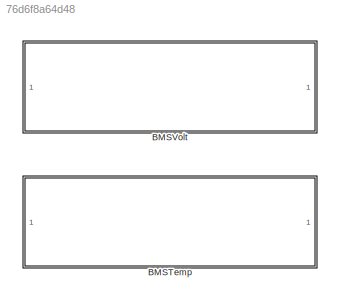
MODEL slx_76d6f8a64d48
KIND library
CONFIG AbsTol = auto
CONFIG EnableMultiTasking = off
CONFIG FixedStep = auto
CONFIG MaxStep = auto
CONFIG MinStep = auto
CONFIG RelTol = 1e-3
CONFIG SampleTimeConstraint = Unconstrained
CONFIG SolverName = VariableStepAuto
CONFIG StartTime = 0.0
CONFIG StopTime = 10.0
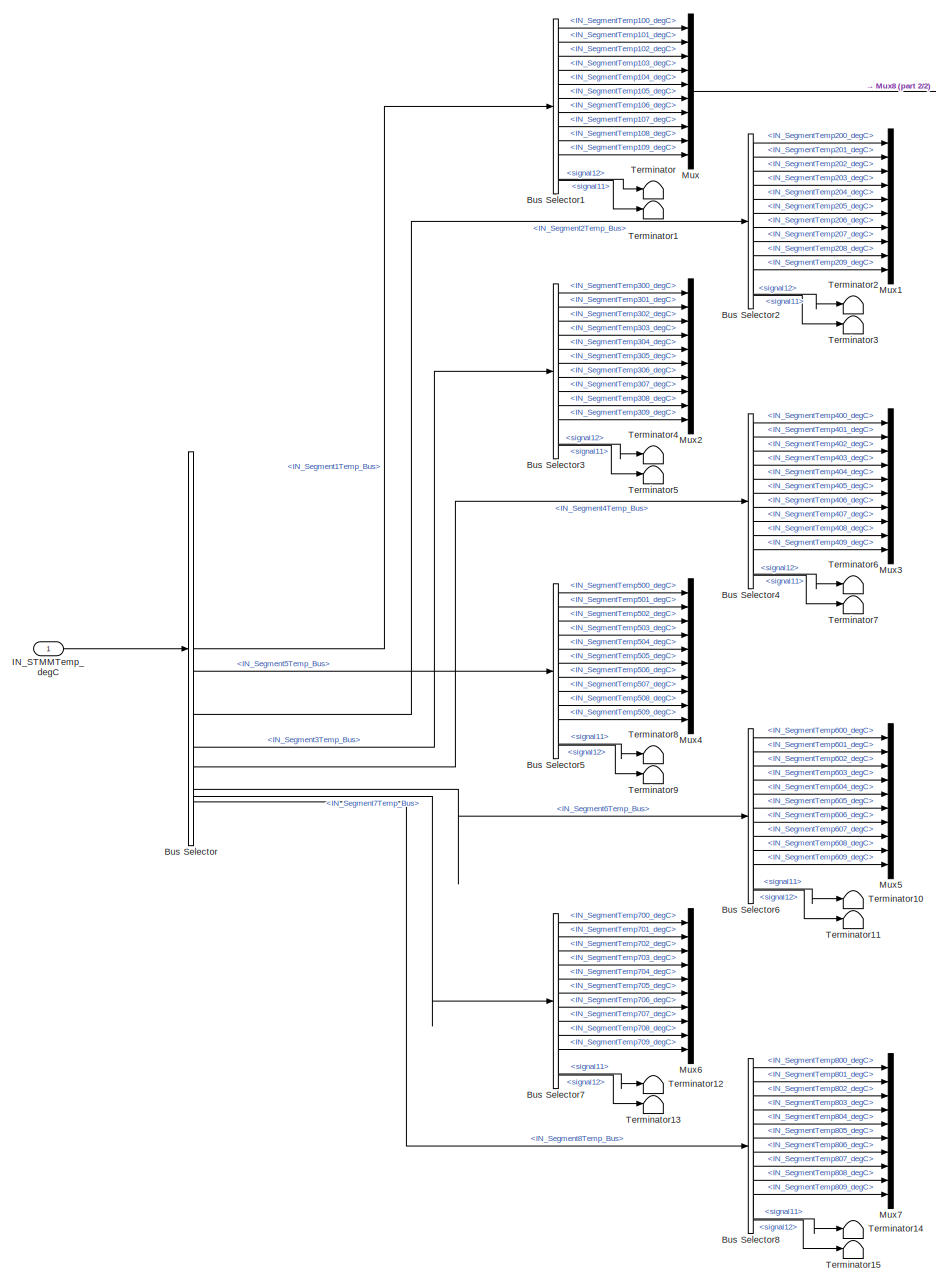
[diagram: BMSTemp - part 1/2, left side, full height]
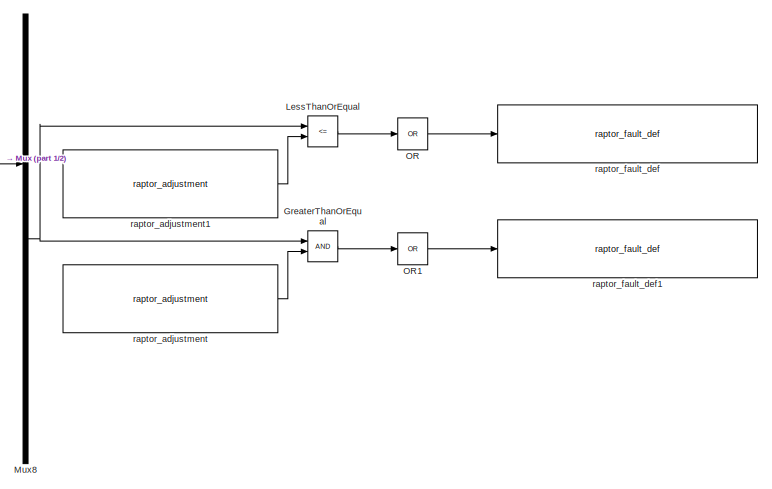
[diagram: BMSTemp - part 2/2, middle right region]
BLOCK [SubSystem] BMSTemp
BLOCK [BusSelector] BMSTemp/Bus Selector
  OutputSignals = IN_Segment1Temp_Bus,IN_Segment2Temp_Bus,IN_Segment3Temp_Bus,IN_Segment4Temp_Bus,IN_Segment5Temp_Bus,IN_Segment6Temp_Bus,IN_Segment7Temp_Bus,IN_Segment8Temp_Bus
BLOCK [BusSelector] BMSTemp/Bus Selector1
  OutputSignals = IN_SegmentTemp100_degC,IN_SegmentTemp101_degC,IN_SegmentTemp102_degC,IN_SegmentTemp103_degC,IN_SegmentTemp104_degC,IN_SegmentTemp105_degC,IN_SegmentTemp106_degC,IN_SegmentTemp107_degC,IN_SegmentTemp108_degC,IN_SegmentTemp109_degC,signal11,signal12
BLOCK [BusSelector] BMSTemp/Bus Selector2
  OutputSignals = IN_SegmentTemp200_degC,IN_SegmentTemp201_degC,IN_SegmentTemp202_degC,IN_SegmentTemp203_degC,IN_SegmentTemp204_degC,IN_SegmentTemp205_degC,IN_SegmentTemp206_degC,IN_SegmentTemp207_degC,IN_SegmentTemp208_degC,IN_SegmentTemp209_degC,signal11,signal12
BLOCK [BusSelector] BMSTemp/Bus Selector3
  OutputSignals = IN_SegmentTemp300_degC,IN_SegmentTemp301_degC,IN_SegmentTemp302_degC,IN_SegmentTemp303_degC,IN_SegmentTemp304_degC,IN_SegmentTemp305_degC,IN_SegmentTemp306_degC,IN_SegmentTemp307_degC,IN_SegmentTemp308_degC,IN_SegmentTemp309_degC,signal11,signal12
BLOCK [BusSelector] BMSTemp/Bus Selector4
  OutputSignals = IN_SegmentTemp400_degC,IN_SegmentTemp401_degC,IN_SegmentTemp402_degC,IN_SegmentTemp403_degC,IN_SegmentTemp404_degC,IN_SegmentTemp405_degC,IN_SegmentTemp406_degC,IN_SegmentTemp407_degC,IN_SegmentTemp408_degC,IN_SegmentTemp409_degC,signal11,signal12
BLOCK [BusSelector] BMSTemp/Bus Selector5
  OutputSignals = IN_SegmentTemp500_degC,IN_SegmentTemp501_degC,IN_SegmentTemp502_degC,IN_SegmentTemp503_degC,IN_SegmentTemp504_degC,IN_SegmentTemp505_degC,IN_SegmentTemp506_degC,IN_SegmentTemp507_degC,IN_SegmentTemp508_degC,IN_SegmentTemp509_degC,signal11,signal12
BLOCK [BusSelector] BMSTemp/Bus Selector6
  OutputSignals = IN_SegmentTemp600_degC,IN_SegmentTemp601_degC,IN_SegmentTemp602_degC,IN_SegmentTemp603_degC,IN_SegmentTemp604_degC,IN_SegmentTemp605_degC,IN_SegmentTemp606_degC,IN_SegmentTemp607_degC,IN_SegmentTemp608_degC,IN_SegmentTemp609_degC,signal11,signal12
BLOCK [BusSelector] BMSTemp/Bus Selector7
  OutputSignals = IN_SegmentTemp700_degC,IN_SegmentTemp701_degC,IN_SegmentTemp702_degC,IN_SegmentTemp703_degC,IN_SegmentTemp704_degC,IN_SegmentTemp705_degC,IN_SegmentTemp706_degC,IN_SegmentTemp707_degC,IN_SegmentTemp708_degC,IN_SegmentTemp709_degC,signal11,signal12
BLOCK [BusSelector] BMSTemp/Bus Selector8
  OutputSignals = IN_SegmentTemp800_degC,IN_SegmentTemp801_degC,IN_SegmentTemp802_degC,IN_SegmentTemp803_degC,IN_SegmentTemp804_degC,IN_SegmentTemp805_degC,IN_SegmentTemp806_degC,IN_SegmentTemp807_degC,IN_SegmentTemp808_degC,IN_SegmentTemp809_degC,signal11,signal12
BLOCK [RelationalOperator] BMSTemp/GreaterThanOrEqual
  InputSameDT = off
  OutDataTypeStr = boolean
  RndMeth = Simplest
BLOCK [Inport] BMSTemp/IN_STMMTemp_degC
BLOCK [RelationalOperator] BMSTemp/LessThanOrEqual
  InputSameDT = off
  Operator = <=
  OutDataTypeStr = boolean
  RndMeth = Simplest
BLOCK [Mux] BMSTemp/Mux
  DisplayOption = bar
  Inputs = 10
BLOCK [Mux] BMSTemp/Mux1
  DisplayOption = bar
  Inputs = 10
BLOCK [Mux] BMSTemp/Mux2
  DisplayOption = bar
  Inputs = 10
BLOCK [Mux] BMSTemp/Mux3
  DisplayOption = bar
  Inputs = 10
BLOCK [Mux] BMSTemp/Mux4
  DisplayOption = bar
  Inputs = 10
BLOCK [Mux] BMSTemp/Mux5
  DisplayOption = bar
  Inputs = 10
BLOCK [Mux] BMSTemp/Mux6
  DisplayOption = bar
  Inputs = 10
BLOCK [Mux] BMSTemp/Mux7
  DisplayOption = bar
  Inputs = 10
BLOCK [Mux] BMSTemp/Mux8
  DisplayOption = bar
  Inputs = 1
BLOCK [Logic] BMSTemp/OR
  AllPortsSameDT = off
  Inputs = 1
  Operator = OR
  OutDataTypeStr = boolean
BLOCK [Logic] BMSTemp/OR1
  AllPortsSameDT = off
  Inputs = 1
  Operator = OR
  OutDataTypeStr = boolean
BLOCK [Terminator] BMSTemp/Terminator
BLOCK [Terminator] BMSTemp/Terminator1
BLOCK [Terminator] BMSTemp/Terminator10
BLOCK [Terminator] BMSTemp/Terminator11
BLOCK [Terminator] BMSTemp/Terminator12
BLOCK [Terminator] BMSTemp/Terminator13
BLOCK [Terminator] BMSTemp/Terminator14
BLOCK [Terminator] BMSTemp/Terminator15
BLOCK [Terminator] BMSTemp/Terminator2
BLOCK [Terminator] BMSTemp/Terminator3
BLOCK [Terminator] BMSTemp/Terminator4
BLOCK [Terminator] BMSTemp/Terminator5
BLOCK [Terminator] BMSTemp/Terminator6
BLOCK [Terminator] BMSTemp/Terminator7
BLOCK [Terminator] BMSTemp/Terminator8
BLOCK [Terminator] BMSTemp/Terminator9
BLOCK [Reference] BMSTemp/raptor_adjustment  REF=Raptor_lib/Data Storage/raptor_adjustment
  SourceBlock = Raptor_lib/Data Storage/raptor_adjustment
  SourceProductName = Raptor
  SourceType = Adjustment
BLOCK [Reference] BMSTemp/raptor_adjustment1  REF=Raptor_lib/Data Storage/raptor_adjustment
  SourceBlock = Raptor_lib/Data Storage/raptor_adjustment
  SourceProductName = Raptor
  SourceType = Adjustment
BLOCK [Reference] BMSTemp/raptor_fault_def  REF=Raptor_lib/Faults/raptor_fault_def
  SourceBlock = Raptor_lib/Faults/raptor_fault_def
  SourceProductName = Raptor
  SourceType = Fault Definition
BLOCK [Reference] BMSTemp/raptor_fault_def1  REF=Raptor_lib/Faults/raptor_fault_def
  SourceBlock = Raptor_lib/Faults/raptor_fault_def
  SourceProductName = Raptor
  SourceType = Fault Definition
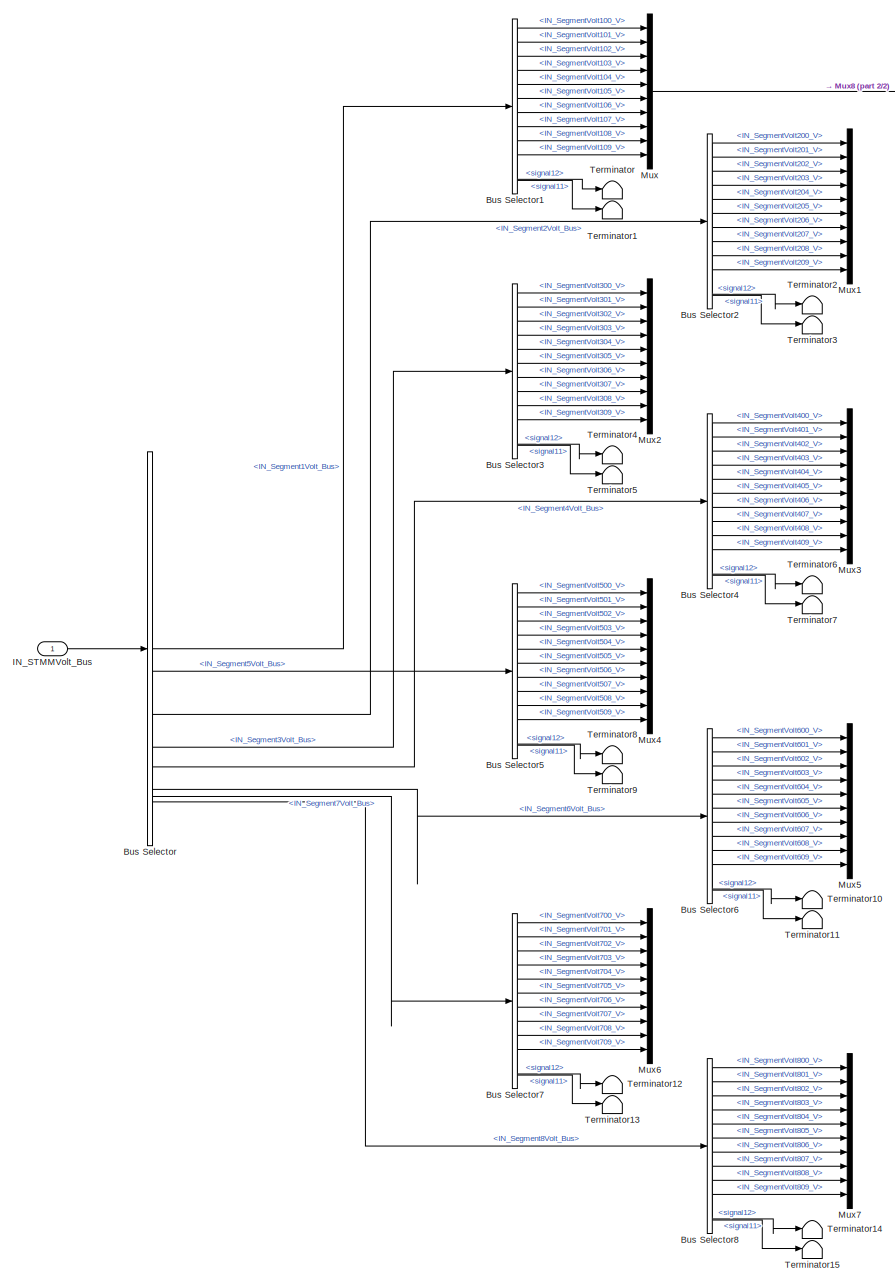
[diagram: BMSVolt - part 1/2, left side, full height]
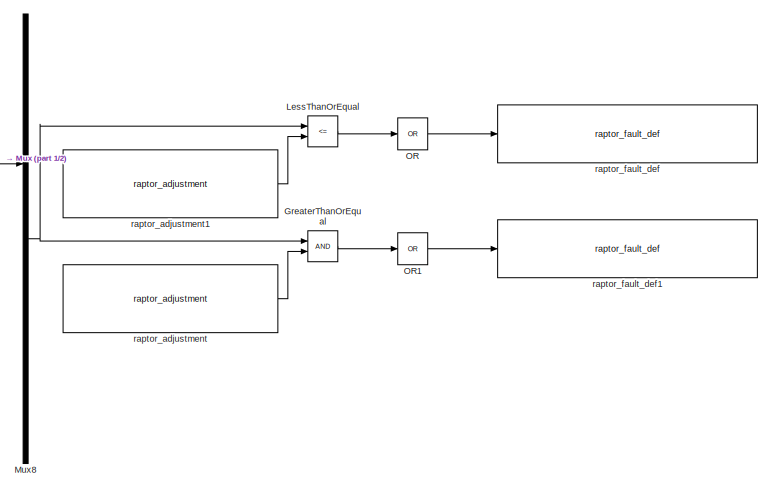
[diagram: BMSVolt - part 2/2, middle right region]
BLOCK [SubSystem] BMSVolt
BLOCK [BusSelector] BMSVolt/Bus Selector
  OutputSignals = IN_Segment1Volt_Bus,IN_Segment2Volt_Bus,IN_Segment3Volt_Bus,IN_Segment4Volt_Bus,IN_Segment5Volt_Bus,IN_Segment6Volt_Bus,IN_Segment7Volt_Bus,IN_Segment8Volt_Bus
BLOCK [BusSelector] BMSVolt/Bus Selector1
  OutputSignals = IN_SegmentVolt100_V,IN_SegmentVolt101_V,IN_SegmentVolt102_V,IN_SegmentVolt103_V,IN_SegmentVolt104_V,IN_SegmentVolt105_V,IN_SegmentVolt106_V,IN_SegmentVolt107_V,IN_SegmentVolt108_V,IN_SegmentVolt109_V,signal11,signal12
BLOCK [BusSelector] BMSVolt/Bus Selector2
  OutputSignals = IN_SegmentVolt200_V,IN_SegmentVolt201_V,IN_SegmentVolt202_V,IN_SegmentVolt203_V,IN_SegmentVolt204_V,IN_SegmentVolt205_V,IN_SegmentVolt206_V,IN_SegmentVolt207_V,IN_SegmentVolt208_V,IN_SegmentVolt209_V,signal11,signal12
BLOCK [BusSelector] BMSVolt/Bus Selector3
  OutputSignals = IN_SegmentVolt300_V,IN_SegmentVolt301_V,IN_SegmentVolt302_V,IN_SegmentVolt303_V,IN_SegmentVolt304_V,IN_SegmentVolt305_V,IN_SegmentVolt306_V,IN_SegmentVolt307_V,IN_SegmentVolt308_V,IN_SegmentVolt309_V,signal11,signal12
BLOCK [BusSelector] BMSVolt/Bus Selector4
  OutputSignals = IN_SegmentVolt400_V,IN_SegmentVolt401_V,IN_SegmentVolt402_V,IN_SegmentVolt403_V,IN_SegmentVolt404_V,IN_SegmentVolt405_V,IN_SegmentVolt406_V,IN_SegmentVolt407_V,IN_SegmentVolt408_V,IN_SegmentVolt409_V,signal11,signal12
BLOCK [BusSelector] BMSVolt/Bus Selector5
  OutputSignals = IN_SegmentVolt500_V,IN_SegmentVolt501_V,IN_SegmentVolt502_V,IN_SegmentVolt503_V,IN_SegmentVolt504_V,IN_SegmentVolt505_V,IN_SegmentVolt506_V,IN_SegmentVolt507_V,IN_SegmentVolt508_V,IN_SegmentVolt509_V,signal11,signal12
BLOCK [BusSelector] BMSVolt/Bus Selector6
  OutputSignals = IN_SegmentVolt600_V,IN_SegmentVolt601_V,IN_SegmentVolt602_V,IN_SegmentVolt603_V,IN_SegmentVolt604_V,IN_SegmentVolt605_V,IN_SegmentVolt606_V,IN_SegmentVolt607_V,IN_SegmentVolt608_V,IN_SegmentVolt609_V,signal11,signal12
BLOCK [BusSelector] BMSVolt/Bus Selector7
  OutputSignals = IN_SegmentVolt700_V,IN_SegmentVolt701_V,IN_SegmentVolt702_V,IN_SegmentVolt703_V,IN_SegmentVolt704_V,IN_SegmentVolt705_V,IN_SegmentVolt706_V,IN_SegmentVolt707_V,IN_SegmentVolt708_V,IN_SegmentVolt709_V,signal11,signal12
BLOCK [BusSelector] BMSVolt/Bus Selector8
  OutputSignals = IN_SegmentVolt800_V,IN_SegmentVolt801_V,IN_SegmentVolt802_V,IN_SegmentVolt803_V,IN_SegmentVolt804_V,IN_SegmentVolt805_V,IN_SegmentVolt806_V,IN_SegmentVolt807_V,IN_SegmentVolt808_V,IN_SegmentVolt809_V,signal11,signal12
BLOCK [RelationalOperator] BMSVolt/GreaterThanOrEqual
  InputSameDT = off
  OutDataTypeStr = boolean
  RndMeth = Simplest
BLOCK [Inport] BMSVolt/IN_STMMVolt_Bus
BLOCK [RelationalOperator] BMSVolt/LessThanOrEqual
  InputSameDT = off
  Operator = <=
  OutDataTypeStr = boolean
  RndMeth = Simplest
BLOCK [Mux] BMSVolt/Mux
  DisplayOption = bar
  Inputs = 10
BLOCK [Mux] BMSVolt/Mux1
  DisplayOption = bar
  Inputs = 10
BLOCK [Mux] BMSVolt/Mux2
  DisplayOption = bar
  Inputs = 10
BLOCK [Mux] BMSVolt/Mux3
  DisplayOption = bar
  Inputs = 10
BLOCK [Mux] BMSVolt/Mux4
  DisplayOption = bar
  Inputs = 10
BLOCK [Mux] BMSVolt/Mux5
  DisplayOption = bar
  Inputs = 10
BLOCK [Mux] BMSVolt/Mux6
  DisplayOption = bar
  Inputs = 10
BLOCK [Mux] BMSVolt/Mux7
  DisplayOption = bar
  Inputs = 10
BLOCK [Mux] BMSVolt/Mux8
  DisplayOption = bar
  Inputs = 1
BLOCK [Logic] BMSVolt/OR
  AllPortsSameDT = off
  Inputs = 1
  Operator = OR
  OutDataTypeStr = boolean
BLOCK [Logic] BMSVolt/OR1
  AllPortsSameDT = off
  Inputs = 1
  Operator = OR
  OutDataTypeStr = boolean
BLOCK [Terminator] BMSVolt/Terminator
BLOCK [Terminator] BMSVolt/Terminator1
BLOCK [Terminator] BMSVolt/Terminator10
BLOCK [Terminator] BMSVolt/Terminator11
BLOCK [Terminator] BMSVolt/Terminator12
BLOCK [Terminator] BMSVolt/Terminator13
BLOCK [Terminator] BMSVolt/Terminator14
BLOCK [Terminator] BMSVolt/Terminator15
BLOCK [Terminator] BMSVolt/Terminator2
BLOCK [Terminator] BMSVolt/Terminator3
BLOCK [Terminator] BMSVolt/Terminator4
BLOCK [Terminator] BMSVolt/Terminator5
BLOCK [Terminator] BMSVolt/Terminator6
BLOCK [Terminator] BMSVolt/Terminator7
BLOCK [Terminator] BMSVolt/Terminator8
BLOCK [Terminator] BMSVolt/Terminator9
BLOCK [Reference] BMSVolt/raptor_adjustment  REF=Raptor_lib/Data Storage/raptor_adjustment
  SourceBlock = Raptor_lib/Data Storage/raptor_adjustment
  SourceProductName = Raptor
  SourceType = Adjustment
BLOCK [Reference] BMSVolt/raptor_adjustment1  REF=Raptor_lib/Data Storage/raptor_adjustment
  SourceBlock = Raptor_lib/Data Storage/raptor_adjustment
  SourceProductName = Raptor
  SourceType = Adjustment
BLOCK [Reference] BMSVolt/raptor_fault_def  REF=Raptor_lib/Faults/raptor_fault_def
  SourceBlock = Raptor_lib/Faults/raptor_fault_def
  SourceProductName = Raptor
  SourceType = Fault Definition
BLOCK [Reference] BMSVolt/raptor_fault_def1  REF=Raptor_lib/Faults/raptor_fault_def
  SourceBlock = Raptor_lib/Faults/raptor_fault_def
  SourceProductName = Raptor
  SourceType = Fault Definition
LINE BMSTemp/Bus Selector1:1 -> BMSTemp/Mux:1
LINE BMSTemp/Bus Selector1:10 -> BMSTemp/Mux:10
LINE BMSTemp/Bus Selector1:11 -> BMSTemp/Terminator:1
LINE BMSTemp/Bus Selector1:12 -> BMSTemp/Terminator1:1
LINE BMSTemp/Bus Selector1:2 -> BMSTemp/Mux:2
LINE BMSTemp/Bus Selector1:3 -> BMSTemp/Mux:3
LINE BMSTemp/Bus Selector1:4 -> BMSTemp/Mux:4
LINE BMSTemp/Bus Selector1:5 -> BMSTemp/Mux:5
LINE BMSTemp/Bus Selector1:6 -> BMSTemp/Mux:6
LINE BMSTemp/Bus Selector1:7 -> BMSTemp/Mux:7
LINE BMSTemp/Bus Selector1:8 -> BMSTemp/Mux:8
LINE BMSTemp/Bus Selector1:9 -> BMSTemp/Mux:9
LINE BMSTemp/Bus Selector2:1 -> BMSTemp/Mux1:1
LINE BMSTemp/Bus Selector2:10 -> BMSTemp/Mux1:10
LINE BMSTemp/Bus Selector2:11 -> BMSTemp/Terminator2:1
LINE BMSTemp/Bus Selector2:12 -> BMSTemp/Terminator3:1
LINE BMSTemp/Bus Selector2:2 -> BMSTemp/Mux1:2
LINE BMSTemp/Bus Selector2:3 -> BMSTemp/Mux1:3
LINE BMSTemp/Bus Selector2:4 -> BMSTemp/Mux1:4
LINE BMSTemp/Bus Selector2:5 -> BMSTemp/Mux1:5
LINE BMSTemp/Bus Selector2:6 -> BMSTemp/Mux1:6
LINE BMSTemp/Bus Selector2:7 -> BMSTemp/Mux1:7
LINE BMSTemp/Bus Selector2:8 -> BMSTemp/Mux1:8
LINE BMSTemp/Bus Selector2:9 -> BMSTemp/Mux1:9
LINE BMSTemp/Bus Selector3:1 -> BMSTemp/Mux2:1
LINE BMSTemp/Bus Selector3:10 -> BMSTemp/Mux2:10
LINE BMSTemp/Bus Selector3:11 -> BMSTemp/Terminator4:1
LINE BMSTemp/Bus Selector3:12 -> BMSTemp/Terminator5:1
LINE BMSTemp/Bus Selector3:2 -> BMSTemp/Mux2:2
LINE BMSTemp/Bus Selector3:3 -> BMSTemp/Mux2:3
LINE BMSTemp/Bus Selector3:4 -> BMSTemp/Mux2:4
LINE BMSTemp/Bus Selector3:5 -> BMSTemp/Mux2:5
LINE BMSTemp/Bus Selector3:6 -> BMSTemp/Mux2:6
LINE BMSTemp/Bus Selector3:7 -> BMSTemp/Mux2:7
LINE BMSTemp/Bus Selector3:8 -> BMSTemp/Mux2:8
LINE BMSTemp/Bus Selector3:9 -> BMSTemp/Mux2:9
LINE BMSTemp/Bus Selector4:1 -> BMSTemp/Mux3:1
LINE BMSTemp/Bus Selector4:10 -> BMSTemp/Mux3:10
LINE BMSTemp/Bus Selector4:11 -> BMSTemp/Terminator6:1
LINE BMSTemp/Bus Selector4:12 -> BMSTemp/Terminator7:1
LINE BMSTemp/Bus Selector4:2 -> BMSTemp/Mux3:2
LINE BMSTemp/Bus Selector4:3 -> BMSTemp/Mux3:3
LINE BMSTemp/Bus Selector4:4 -> BMSTemp/Mux3:4
LINE BMSTemp/Bus Selector4:5 -> BMSTemp/Mux3:5
LINE BMSTemp/Bus Selector4:6 -> BMSTemp/Mux3:6
LINE BMSTemp/Bus Selector4:7 -> BMSTemp/Mux3:7
LINE BMSTemp/Bus Selector4:8 -> BMSTemp/Mux3:8
LINE BMSTemp/Bus Selector4:9 -> BMSTemp/Mux3:9
LINE BMSTemp/Bus Selector5:1 -> BMSTemp/Mux4:1
LINE BMSTemp/Bus Selector5:10 -> BMSTemp/Mux4:10
LINE BMSTemp/Bus Selector5:11 -> BMSTemp/Terminator8:1
LINE BMSTemp/Bus Selector5:12 -> BMSTemp/Terminator9:1
LINE BMSTemp/Bus Selector5:2 -> BMSTemp/Mux4:2
LINE BMSTemp/Bus Selector5:3 -> BMSTemp/Mux4:3
LINE BMSTemp/Bus Selector5:4 -> BMSTemp/Mux4:4
LINE BMSTemp/Bus Selector5:5 -> BMSTemp/Mux4:5
LINE BMSTemp/Bus Selector5:6 -> BMSTemp/Mux4:6
LINE BMSTemp/Bus Selector5:7 -> BMSTemp/Mux4:7
LINE BMSTemp/Bus Selector5:8 -> BMSTemp/Mux4:8
LINE BMSTemp/Bus Selector5:9 -> BMSTemp/Mux4:9
LINE BMSTemp/Bus Selector6:1 -> BMSTemp/Mux5:1
LINE BMSTemp/Bus Selector6:10 -> BMSTemp/Mux5:10
LINE BMSTemp/Bus Selector6:11 -> BMSTemp/Terminator10:1
LINE BMSTemp/Bus Selector6:12 -> BMSTemp/Terminator11:1
LINE BMSTemp/Bus Selector6:2 -> BMSTemp/Mux5:2
LINE BMSTemp/Bus Selector6:3 -> BMSTemp/Mux5:3
LINE BMSTemp/Bus Selector6:4 -> BMSTemp/Mux5:4
LINE BMSTemp/Bus Selector6:5 -> BMSTemp/Mux5:5
LINE BMSTemp/Bus Selector6:6 -> BMSTemp/Mux5:6
LINE BMSTemp/Bus Selector6:7 -> BMSTemp/Mux5:7
LINE BMSTemp/Bus Selector6:8 -> BMSTemp/Mux5:8
LINE BMSTemp/Bus Selector6:9 -> BMSTemp/Mux5:9
LINE BMSTemp/Bus Selector7:1 -> BMSTemp/Mux6:1
LINE BMSTemp/Bus Selector7:10 -> BMSTemp/Mux6:10
LINE BMSTemp/Bus Selector7:11 -> BMSTemp/Terminator12:1
LINE BMSTemp/Bus Selector7:12 -> BMSTemp/Terminator13:1
LINE BMSTemp/Bus Selector7:2 -> BMSTemp/Mux6:2
LINE BMSTemp/Bus Selector7:3 -> BMSTemp/Mux6:3
LINE BMSTemp/Bus Selector7:4 -> BMSTemp/Mux6:4
LINE BMSTemp/Bus Selector7:5 -> BMSTemp/Mux6:5
LINE BMSTemp/Bus Selector7:6 -> BMSTemp/Mux6:6
LINE BMSTemp/Bus Selector7:7 -> BMSTemp/Mux6:7
LINE BMSTemp/Bus Selector7:8 -> BMSTemp/Mux6:8
LINE BMSTemp/Bus Selector7:9 -> BMSTemp/Mux6:9
LINE BMSTemp/Bus Selector8:1 -> BMSTemp/Mux7:1
LINE BMSTemp/Bus Selector8:10 -> BMSTemp/Mux7:10
LINE BMSTemp/Bus Selector8:11 -> BMSTemp/Terminator14:1
LINE BMSTemp/Bus Selector8:12 -> BMSTemp/Terminator15:1
LINE BMSTemp/Bus Selector8:2 -> BMSTemp/Mux7:2
LINE BMSTemp/Bus Selector8:3 -> BMSTemp/Mux7:3
LINE BMSTemp/Bus Selector8:4 -> BMSTemp/Mux7:4
LINE BMSTemp/Bus Selector8:5 -> BMSTemp/Mux7:5
LINE BMSTemp/Bus Selector8:6 -> BMSTemp/Mux7:6
LINE BMSTemp/Bus Selector8:7 -> BMSTemp/Mux7:7
LINE BMSTemp/Bus Selector8:8 -> BMSTemp/Mux7:8
LINE BMSTemp/Bus Selector8:9 -> BMSTemp/Mux7:9
LINE BMSTemp/Bus Selector:1 -> BMSTemp/Bus Selector1:1
LINE BMSTemp/Bus Selector:2 -> BMSTemp/Bus Selector2:1
LINE BMSTemp/Bus Selector:3 -> BMSTemp/Bus Selector3:1
LINE BMSTemp/Bus Selector:4 -> BMSTemp/Bus Selector4:1
LINE BMSTemp/Bus Selector:5 -> BMSTemp/Bus Selector5:1
LINE BMSTemp/Bus Selector:6 -> BMSTemp/Bus Selector6:1
LINE BMSTemp/Bus Selector:7 -> BMSTemp/Bus Selector7:1
LINE BMSTemp/Bus Selector:8 -> BMSTemp/Bus Selector8:1
LINE BMSTemp/GreaterThanOrEqual:1 -> BMSTemp/OR1:1
LINE BMSTemp/IN_STMMTemp_degC:1 -> BMSTemp/Bus Selector:1
LINE BMSTemp/LessThanOrEqual:1 -> BMSTemp/OR:1
NET BMSTemp/Mux8:1 -> BMSTemp/GreaterThanOrEqual:1, BMSTemp/LessThanOrEqual:1
LINE BMSTemp/Mux:1 -> BMSTemp/Mux8:1
LINE BMSTemp/OR1:1 -> BMSTemp/raptor_fault_def1:1
LINE BMSTemp/OR:1 -> BMSTemp/raptor_fault_def:1
LINE BMSTemp/raptor_adjustment1:1 -> BMSTemp/LessThanOrEqual:2
LINE BMSTemp/raptor_adjustment:1 -> BMSTemp/GreaterThanOrEqual:2
LINE BMSVolt/Bus Selector1:1 -> BMSVolt/Mux:1
LINE BMSVolt/Bus Selector1:10 -> BMSVolt/Mux:10
LINE BMSVolt/Bus Selector1:11 -> BMSVolt/Terminator:1
LINE BMSVolt/Bus Selector1:12 -> BMSVolt/Terminator1:1
LINE BMSVolt/Bus Selector1:2 -> BMSVolt/Mux:2
LINE BMSVolt/Bus Selector1:3 -> BMSVolt/Mux:3
LINE BMSVolt/Bus Selector1:4 -> BMSVolt/Mux:4
LINE BMSVolt/Bus Selector1:5 -> BMSVolt/Mux:5
LINE BMSVolt/Bus Selector1:6 -> BMSVolt/Mux:6
LINE BMSVolt/Bus Selector1:7 -> BMSVolt/Mux:7
LINE BMSVolt/Bus Selector1:8 -> BMSVolt/Mux:8
LINE BMSVolt/Bus Selector1:9 -> BMSVolt/Mux:9
LINE BMSVolt/Bus Selector2:1 -> BMSVolt/Mux1:1
LINE BMSVolt/Bus Selector2:10 -> BMSVolt/Mux1:10
LINE BMSVolt/Bus Selector2:11 -> BMSVolt/Terminator2:1
LINE BMSVolt/Bus Selector2:12 -> BMSVolt/Terminator3:1
LINE BMSVolt/Bus Selector2:2 -> BMSVolt/Mux1:2
LINE BMSVolt/Bus Selector2:3 -> BMSVolt/Mux1:3
LINE BMSVolt/Bus Selector2:4 -> BMSVolt/Mux1:4
LINE BMSVolt/Bus Selector2:5 -> BMSVolt/Mux1:5
LINE BMSVolt/Bus Selector2:6 -> BMSVolt/Mux1:6
LINE BMSVolt/Bus Selector2:7 -> BMSVolt/Mux1:7
LINE BMSVolt/Bus Selector2:8 -> BMSVolt/Mux1:8
LINE BMSVolt/Bus Selector2:9 -> BMSVolt/Mux1:9
LINE BMSVolt/Bus Selector3:1 -> BMSVolt/Mux2:1
LINE BMSVolt/Bus Selector3:10 -> BMSVolt/Mux2:10
LINE BMSVolt/Bus Selector3:11 -> BMSVolt/Terminator4:1
LINE BMSVolt/Bus Selector3:12 -> BMSVolt/Terminator5:1
LINE BMSVolt/Bus Selector3:2 -> BMSVolt/Mux2:2
LINE BMSVolt/Bus Selector3:3 -> BMSVolt/Mux2:3
LINE BMSVolt/Bus Selector3:4 -> BMSVolt/Mux2:4
LINE BMSVolt/Bus Selector3:5 -> BMSVolt/Mux2:5
LINE BMSVolt/Bus Selector3:6 -> BMSVolt/Mux2:6
LINE BMSVolt/Bus Selector3:7 -> BMSVolt/Mux2:7
LINE BMSVolt/Bus Selector3:8 -> BMSVolt/Mux2:8
LINE BMSVolt/Bus Selector3:9 -> BMSVolt/Mux2:9
LINE BMSVolt/Bus Selector4:1 -> BMSVolt/Mux3:1
LINE BMSVolt/Bus Selector4:10 -> BMSVolt/Mux3:10
LINE BMSVolt/Bus Selector4:11 -> BMSVolt/Terminator6:1
LINE BMSVolt/Bus Selector4:12 -> BMSVolt/Terminator7:1
LINE BMSVolt/Bus Selector4:2 -> BMSVolt/Mux3:2
LINE BMSVolt/Bus Selector4:3 -> BMSVolt/Mux3:3
LINE BMSVolt/Bus Selector4:4 -> BMSVolt/Mux3:4
LINE BMSVolt/Bus Selector4:5 -> BMSVolt/Mux3:5
LINE BMSVolt/Bus Selector4:6 -> BMSVolt/Mux3:6
LINE BMSVolt/Bus Selector4:7 -> BMSVolt/Mux3:7
LINE BMSVolt/Bus Selector4:8 -> BMSVolt/Mux3:8
LINE BMSVolt/Bus Selector4:9 -> BMSVolt/Mux3:9
LINE BMSVolt/Bus Selector5:1 -> BMSVolt/Mux4:1
LINE BMSVolt/Bus Selector5:10 -> BMSVolt/Mux4:10
LINE BMSVolt/Bus Selector5:11 -> BMSVolt/Terminator8:1
LINE BMSVolt/Bus Selector5:12 -> BMSVolt/Terminator9:1
LINE BMSVolt/Bus Selector5:2 -> BMSVolt/Mux4:2
LINE BMSVolt/Bus Selector5:3 -> BMSVolt/Mux4:3
LINE BMSVolt/Bus Selector5:4 -> BMSVolt/Mux4:4
LINE BMSVolt/Bus Selector5:5 -> BMSVolt/Mux4:5
LINE BMSVolt/Bus Selector5:6 -> BMSVolt/Mux4:6
LINE BMSVolt/Bus Selector5:7 -> BMSVolt/Mux4:7
LINE BMSVolt/Bus Selector5:8 -> BMSVolt/Mux4:8
LINE BMSVolt/Bus Selector5:9 -> BMSVolt/Mux4:9
LINE BMSVolt/Bus Selector6:1 -> BMSVolt/Mux5:1
LINE BMSVolt/Bus Selector6:10 -> BMSVolt/Mux5:10
LINE BMSVolt/Bus Selector6:11 -> BMSVolt/Terminator10:1
LINE BMSVolt/Bus Selector6:12 -> BMSVolt/Terminator11:1
LINE BMSVolt/Bus Selector6:2 -> BMSVolt/Mux5:2
LINE BMSVolt/Bus Selector6:3 -> BMSVolt/Mux5:3
LINE BMSVolt/Bus Selector6:4 -> BMSVolt/Mux5:4
LINE BMSVolt/Bus Selector6:5 -> BMSVolt/Mux5:5
LINE BMSVolt/Bus Selector6:6 -> BMSVolt/Mux5:6
LINE BMSVolt/Bus Selector6:7 -> BMSVolt/Mux5:7
LINE BMSVolt/Bus Selector6:8 -> BMSVolt/Mux5:8
LINE BMSVolt/Bus Selector6:9 -> BMSVolt/Mux5:9
LINE BMSVolt/Bus Selector7:1 -> BMSVolt/Mux6:1
LINE BMSVolt/Bus Selector7:10 -> BMSVolt/Mux6:10
LINE BMSVolt/Bus Selector7:11 -> BMSVolt/Terminator12:1
LINE BMSVolt/Bus Selector7:12 -> BMSVolt/Terminator13:1
LINE BMSVolt/Bus Selector7:2 -> BMSVolt/Mux6:2
LINE BMSVolt/Bus Selector7:3 -> BMSVolt/Mux6:3
LINE BMSVolt/Bus Selector7:4 -> BMSVolt/Mux6:4
LINE BMSVolt/Bus Selector7:5 -> BMSVolt/Mux6:5
LINE BMSVolt/Bus Selector7:6 -> BMSVolt/Mux6:6
LINE BMSVolt/Bus Selector7:7 -> BMSVolt/Mux6:7
LINE BMSVolt/Bus Selector7:8 -> BMSVolt/Mux6:8
LINE BMSVolt/Bus Selector7:9 -> BMSVolt/Mux6:9
LINE BMSVolt/Bus Selector8:1 -> BMSVolt/Mux7:1
LINE BMSVolt/Bus Selector8:10 -> BMSVolt/Mux7:10
LINE BMSVolt/Bus Selector8:11 -> BMSVolt/Terminator14:1
LINE BMSVolt/Bus Selector8:12 -> BMSVolt/Terminator15:1
LINE BMSVolt/Bus Selector8:2 -> BMSVolt/Mux7:2
LINE BMSVolt/Bus Selector8:3 -> BMSVolt/Mux7:3
LINE BMSVolt/Bus Selector8:4 -> BMSVolt/Mux7:4
LINE BMSVolt/Bus Selector8:5 -> BMSVolt/Mux7:5
LINE BMSVolt/Bus Selector8:6 -> BMSVolt/Mux7:6
LINE BMSVolt/Bus Selector8:7 -> BMSVolt/Mux7:7
LINE BMSVolt/Bus Selector8:8 -> BMSVolt/Mux7:8
LINE BMSVolt/Bus Selector8:9 -> BMSVolt/Mux7:9
LINE BMSVolt/Bus Selector:1 -> BMSVolt/Bus Selector1:1
LINE BMSVolt/Bus Selector:2 -> BMSVolt/Bus Selector2:1
LINE BMSVolt/Bus Selector:3 -> BMSVolt/Bus Selector3:1
LINE BMSVolt/Bus Selector:4 -> BMSVolt/Bus Selector4:1
LINE BMSVolt/Bus Selector:5 -> BMSVolt/Bus Selector5:1
LINE BMSVolt/Bus Selector:6 -> BMSVolt/Bus Selector6:1
LINE BMSVolt/Bus Selector:7 -> BMSVolt/Bus Selector7:1
LINE BMSVolt/Bus Selector:8 -> BMSVolt/Bus Selector8:1
LINE BMSVolt/GreaterThanOrEqual:1 -> BMSVolt/OR1:1
LINE BMSVolt/IN_STMMVolt_Bus:1 -> BMSVolt/Bus Selector:1
LINE BMSVolt/LessThanOrEqual:1 -> BMSVolt/OR:1
NET BMSVolt/Mux8:1 -> BMSVolt/GreaterThanOrEqual:1, BMSVolt/LessThanOrEqual:1
LINE BMSVolt/Mux:1 -> BMSVolt/Mux8:1
LINE BMSVolt/OR1:1 -> BMSVolt/raptor_fault_def1:1
LINE BMSVolt/OR:1 -> BMSVolt/raptor_fault_def:1
LINE BMSVolt/raptor_adjustment1:1 -> BMSVolt/LessThanOrEqual:2
LINE BMSVolt/raptor_adjustment:1 -> BMSVolt/GreaterThanOrEqual:2
note: NET lines group one-source signal fan-out (src -> all destinations, sorted); 1:1 wires keep LINE
